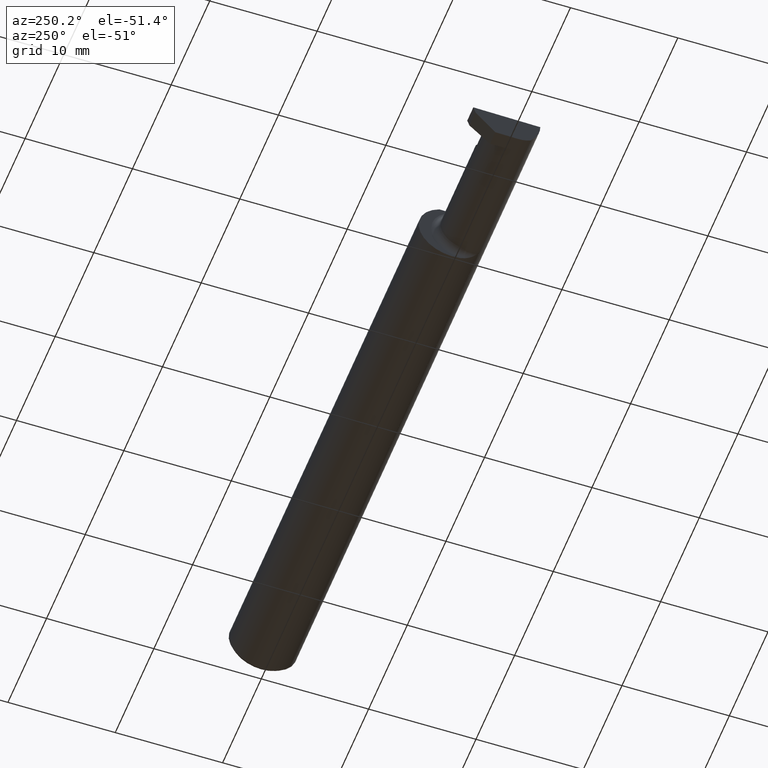
[diagram: clean part render]
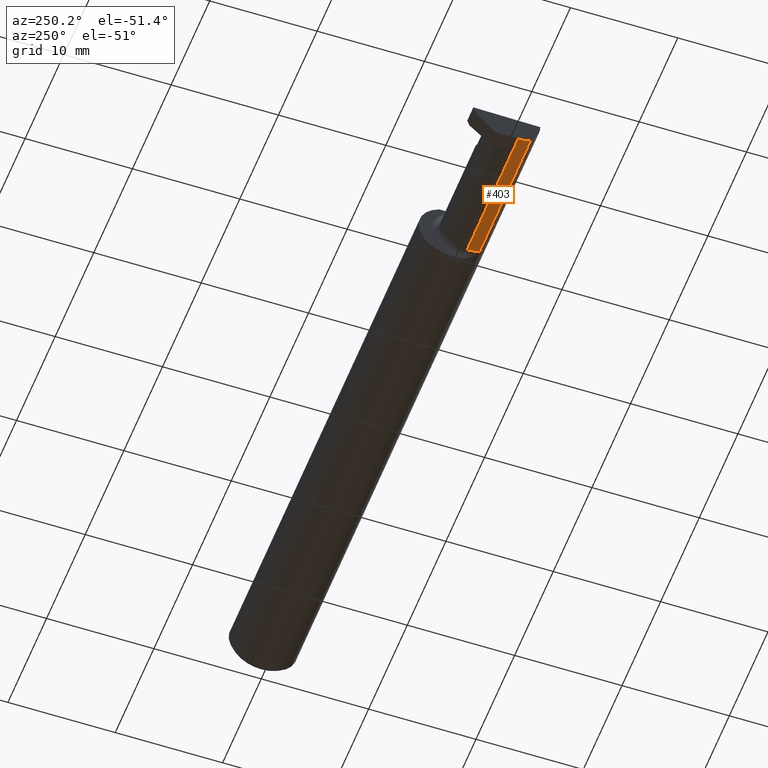
[diagram: same view with one face highlighted and labeled with its STEP entity id]
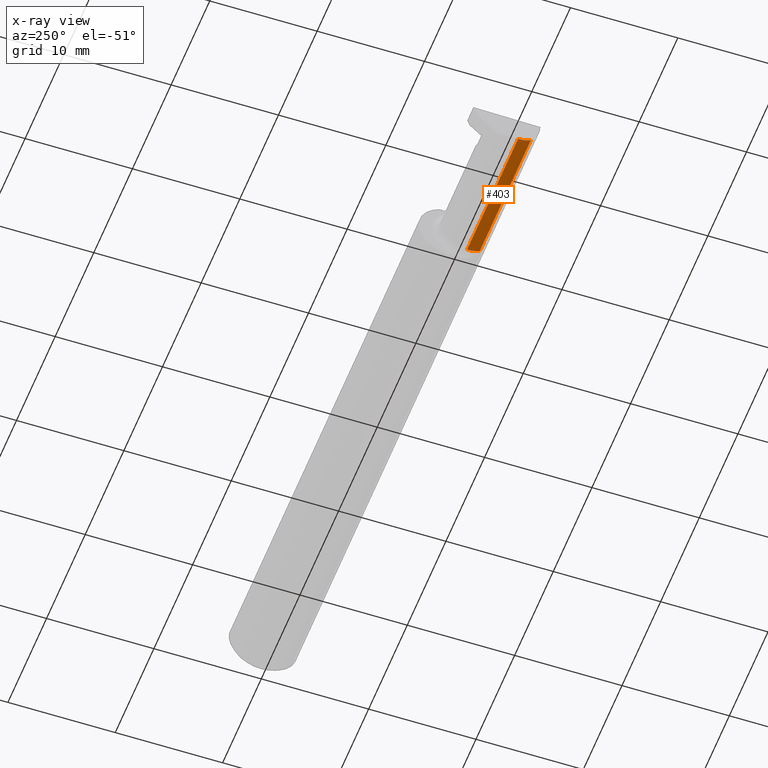
[diagram: x-ray of the same camera — body ghosted, the highlighted face saturated]
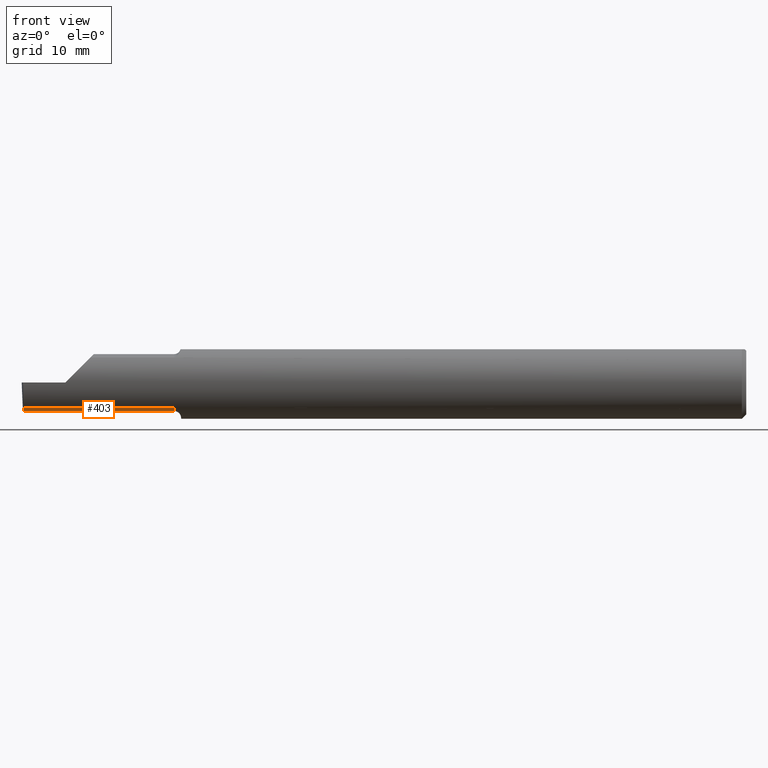
[diagram: same view with one face highlighted and labeled with its STEP entity id]
A machine part, auxiliary view. The second image highlights one B-rep face of the part: STEP entity #403.
The next image is the same camera in x-ray: the body ghosted, the highlighted face saturated — about 0% of this face is hidden behind the body in this view.
A second angle (front view) of the same face is appended — the face is thin or edge-on in the first view.
In plain terms, the highlighted cylindrical surface (edge-blend (fillet) strip) has radius 2.4892 mm, axis along (1, -0, -0).
Its self-contained STEP definition (entity closure, byte-faithful):
#12 = LINE ( 'NONE', #619, #134 ) ;
#14 = DIRECTION ( 'NONE',  ( 1.000000000000000000, -0.000000000000000000, -0.000000000000000000 ) ) ;
#18 = DIRECTION ( 'NONE',  ( 0.000000000000000000, 0.000000000000000000, 1.000000000000000000 ) ) ;
#31 = EDGE_CURVE ( 'NONE', #428, #485, #327, .T. ) ;
#57 = ORIENTED_EDGE ( 'NONE', *, *, #340, .T. ) ;
#81 = ORIENTED_EDGE ( 'NONE', *, *, #734, .T. ) ;
#83 = CARTESIAN_POINT ( 'NONE',  ( -1.949999999999999956, -0.04385000000000001397, 0.000000000000000000 ) ) ;
#119 = DIRECTION ( 'NONE',  ( 1.000000000000000000, -0.000000000000000000, -0.000000000000000000 ) ) ;
#134 = VECTOR ( 'NONE', #429, 39.37007874015748143 ) ;
#176 = VERTEX_POINT ( 'NONE', #648 ) ;
#185 = CARTESIAN_POINT ( 'NONE',  ( -2.205999999999999961, -0.09015216647662482874, -0.08637192471845768493 ) ) ;
#215 = AXIS2_PLACEMENT_3D ( 'NONE', #83, #14, #18 ) ;
#242 = VECTOR ( 'NONE', #119, 39.37007874015748143 ) ;
#243 = VERTEX_POINT ( 'NONE', #472 ) ;
#274 = EDGE_CURVE ( 'NONE', #176, #243, #475, .T. ) ;
#315 = DIRECTION ( 'NONE',  ( 0.000000000000000000, 0.000000000000000000, 1.000000000000000000 ) ) ;
#327 = LINE ( 'NONE', #442, #242 ) ;
#340 = EDGE_CURVE ( 'NONE', #176, #428, #474, .T. ) ;
#368 = CARTESIAN_POINT ( 'NONE',  ( -2.494082244196984099, -0.07583965973232818791, -0.09404455760388209795 ) ) ;
#381 = ORIENTED_EDGE ( 'NONE', *, *, #274, .F. ) ;
#403 = ADVANCED_FACE ( 'NONE', ( #630 ), #624, .T. ) ;
#418 = DIRECTION ( 'NONE',  ( 1.000000000000000000, -0.000000000000000000, -0.000000000000000000 ) ) ;
#428 = VERTEX_POINT ( 'NONE', #745 ) ;
#429 = DIRECTION ( 'NONE',  ( 1.000000000000000000, -0.000000000000000000, -0.000000000000000000 ) ) ;
#432 = CARTESIAN_POINT ( 'NONE',  ( -1.974999999999999867, -0.04385000000000001397, 0.000000000000000000 ) ) ;
#437 = ORIENTED_EDGE ( 'NONE', *, *, #31, .T. ) ;
#442 = CARTESIAN_POINT ( 'NONE',  ( -2.500000000000000000, -0.04385000000000002091, -0.09799999999999998990 ) ) ;
#461 = CARTESIAN_POINT ( 'NONE',  ( -2.441853376795601882, -0.04385000000000004172, -0.09799999999999998990 ) ) ;
#468 = CARTESIAN_POINT ( 'NONE',  ( -2.494253479596434175, -0.06008937020638530080, -0.09800000000000001765 ) ) ;
#472 = CARTESIAN_POINT ( 'NONE',  ( -1.974999999999999867, -0.09015216647662478711, -0.08637192471845771269 ) ) ;
#474 =( BOUNDED_CURVE ( )  B_SPLINE_CURVE ( 3, ( #531, #368, #468, #725 ),
 .UNSPECIFIED., .F., .T. ) 
 B_SPLINE_CURVE_WITH_KNOTS ( ( 4, 4 ),
 ( 0.09562308769844128642, 0.5877155292609013149 ),
 .UNSPECIFIED. ) 
 CURVE ( )  GEOMETRIC_REPRESENTATION_ITEM ( )  RATIONAL_B_SPLINE_CURVE ( ( 1.000000000000000000, 0.9799220177372778284, 0.9799220177372778284, 1.000000000000000000 ) ) 
 REPRESENTATION_ITEM ( '' )  );
#475 = LINE ( 'NONE', #185, #493 ) ;
#485 = VERTEX_POINT ( 'NONE', #461 ) ;
#493 = VECTOR ( 'NONE', #418, 39.37007874015748143 ) ;
#531 = CARTESIAN_POINT ( 'NONE',  ( -2.494033449660867152, -0.09015216647662482874, -0.08637192471845768493 ) ) ;
#552 = CIRCLE ( 'NONE', #654, 0.09800000000000000377 ) ;
#590 = VERTEX_POINT ( 'NONE', #761 ) ;
#607 = ORIENTED_EDGE ( 'NONE', *, *, #711, .T. ) ;
#613 = DIRECTION ( 'NONE',  ( -1.000000000000000000, 0.000000000000000000, 0.000000000000000000 ) ) ;
#619 = CARTESIAN_POINT ( 'NONE',  ( -1.949999999999999956, -0.04385000000000002091, -0.09800000000000000377 ) ) ;
#624 = CYLINDRICAL_SURFACE ( 'NONE', #215, 0.09800000000000000377 ) ;
#630 = FACE_OUTER_BOUND ( 'NONE', #679, .T. ) ;
#648 = CARTESIAN_POINT ( 'NONE',  ( -2.494033449660867152, -0.09015216647662482874, -0.08637192471845768493 ) ) ;
#654 = AXIS2_PLACEMENT_3D ( 'NONE', #432, #613, #315 ) ;
#679 = EDGE_LOOP ( 'NONE', ( #437, #607, #81, #381, #57 ) ) ;
#711 = EDGE_CURVE ( 'NONE', #485, #590, #12, .T. ) ;
#725 = CARTESIAN_POINT ( 'NONE',  ( -2.494536841675280670, -0.04385000000000003478, -0.09799999999999998990 ) ) ;
#734 = EDGE_CURVE ( 'NONE', #590, #243, #552, .T. ) ;
#745 = CARTESIAN_POINT ( 'NONE',  ( -2.494536841675280670, -0.04385000000000003478, -0.09799999999999998990 ) ) ;
#761 = CARTESIAN_POINT ( 'NONE',  ( -1.974999999999999867, -0.04385000000000003478, -0.09800000000000000377 ) ) ;